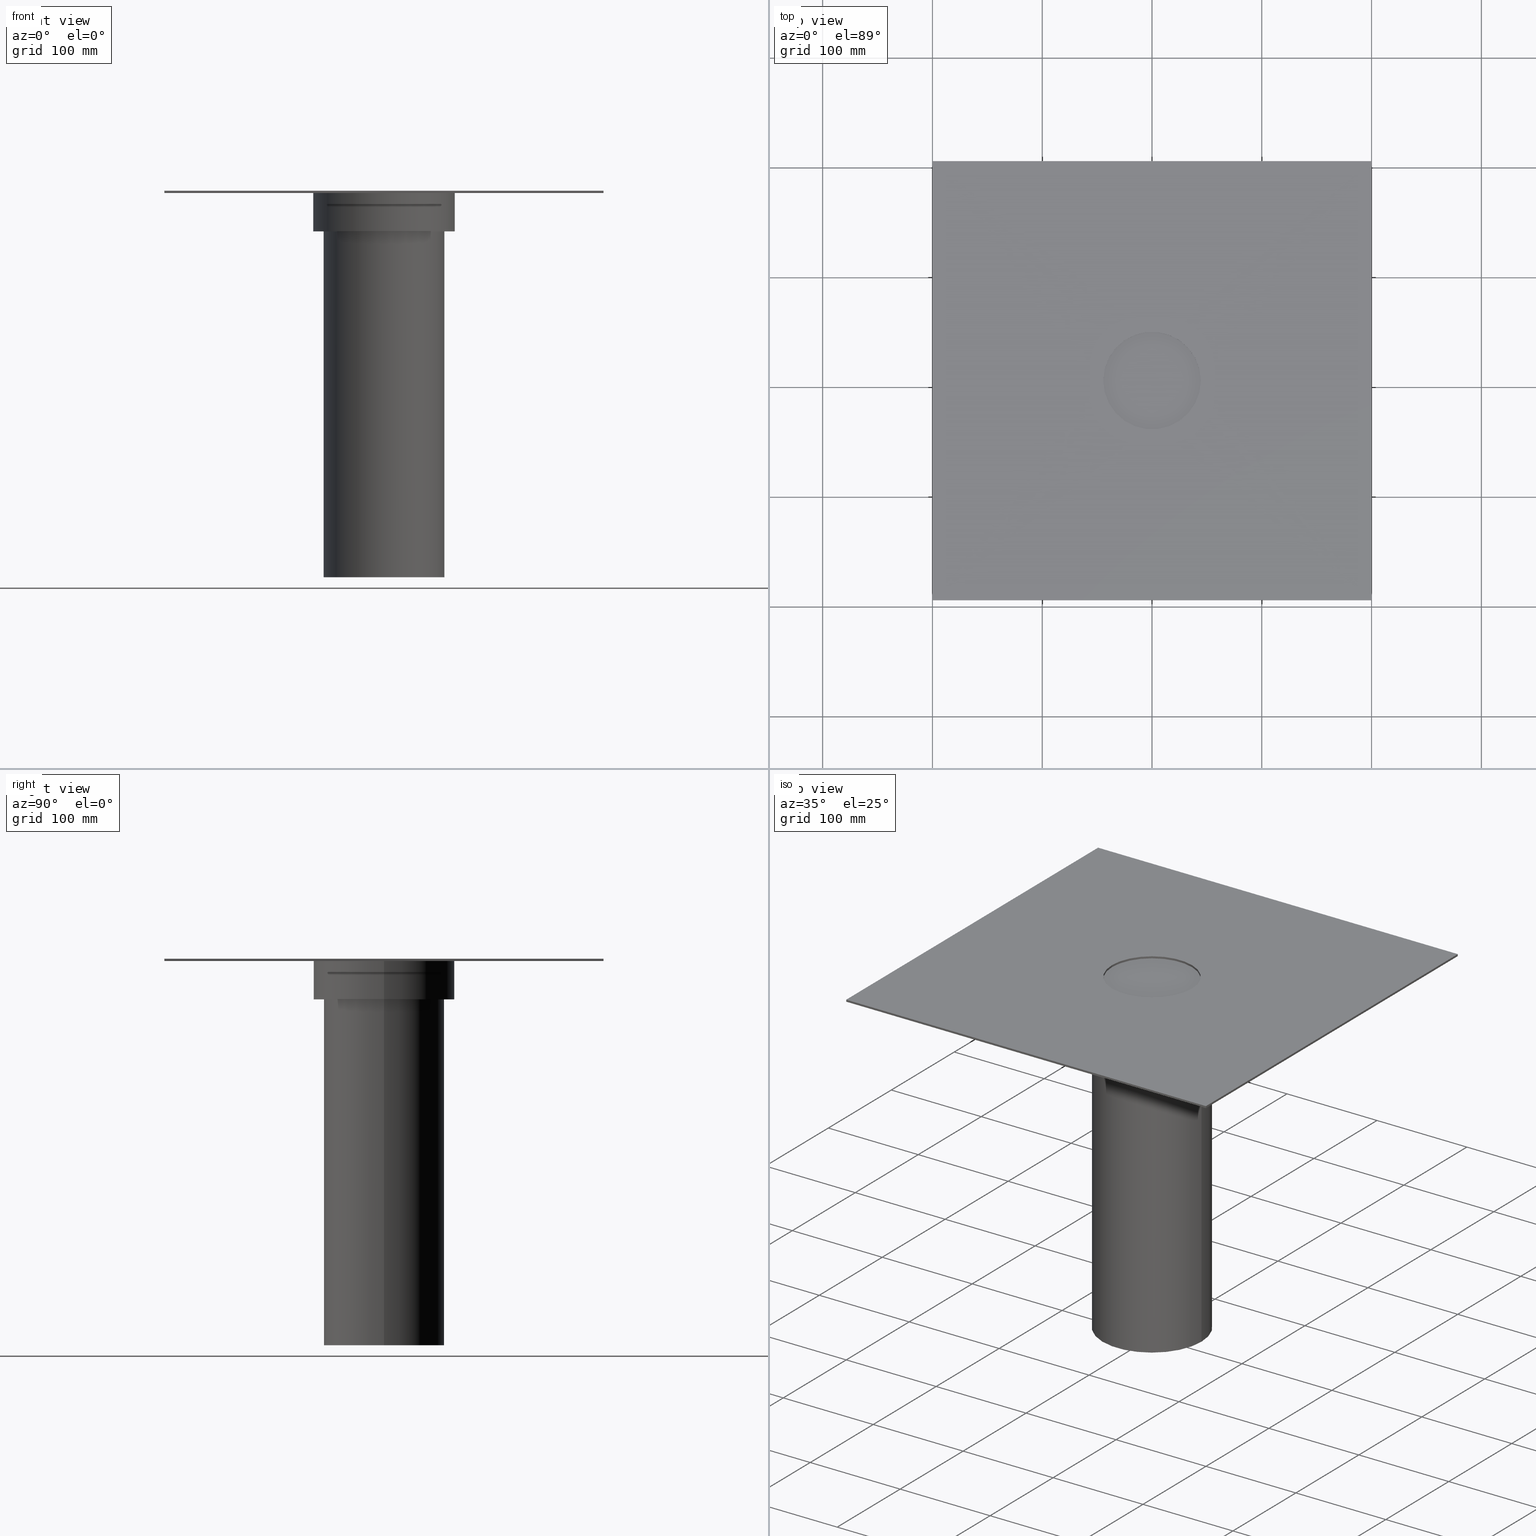
[diagram: canonical four-view strip — front | top / right | iso, engineering-drawing reading convention]
A machine part, canonical four-view strip (front | top / right | iso — engineering-drawing reading convention). The complete STEP part file that produces these views, byte-faithful:
ISO-10303-21;
HEADER;
/* Generated by software containing ST-Developer
 * from STEP Tools, Inc. (www.steptools.com) 
 */

FILE_DESCRIPTION(
/* description */ (''),
/* implementation_level */ '2;1');

FILE_NAME(
/* name */ 
'G:\\Workspace\\resitec\\Packs\\Kategorie\\Dachwassereinlauf\\RS586.10
0.110.stp',
/* time_stamp */ '2020-12-02T18:23:02+01:00',
/* author */ ('ndmes'),
/* organization */ (''),
/* preprocessor_version */ 'ST-DEVELOPER v18.1',
/* originating_system */ 'Autodesk Inventor 2021',
/* authorisation */ '');

FILE_SCHEMA (('AUTOMOTIVE_DESIGN { 1 0 10303 214 3 1 1 }'));
ENDSEC;

DATA;
#10=MECHANICAL_DESIGN_GEOMETRIC_PRESENTATION_REPRESENTATION('',(#13,#14,
#15),#441);
#11=SHAPE_REPRESENTATION_RELATIONSHIP('SRR','None',#448,#12);
#12=ADVANCED_BREP_SHAPE_REPRESENTATION('',(#16,#17,#18),#440);
#13=STYLED_ITEM('',(#457),#16);
#14=STYLED_ITEM('',(#457),#17);
#15=STYLED_ITEM('',(#457),#18);
#16=MANIFOLD_SOLID_BREP('Volumenk\X\F6rper1',#245);
#17=MANIFOLD_SOLID_BREP('Volumenk\X\F6rper2',#246);
#18=MANIFOLD_SOLID_BREP('Volumenk\X\F6rper3',#247);
#19=FACE_BOUND('',#54,.T.);
#20=FACE_BOUND('',#56,.T.);
#21=PLANE('',#273);
#22=PLANE('',#274);
#23=PLANE('',#275);
#24=PLANE('',#276);
#25=PLANE('',#277);
#26=PLANE('',#278);
#27=PLANE('',#285);
#28=PLANE('',#286);
#29=PLANE('',#293);
#30=PLANE('',#294);
#31=FACE_OUTER_BOUND('',#47,.T.);
#32=FACE_OUTER_BOUND('',#48,.T.);
#33=FACE_OUTER_BOUND('',#49,.T.);
#34=FACE_OUTER_BOUND('',#50,.T.);
#35=FACE_OUTER_BOUND('',#51,.T.);
#36=FACE_OUTER_BOUND('',#52,.T.);
#37=FACE_OUTER_BOUND('',#53,.T.);
#38=FACE_OUTER_BOUND('',#55,.T.);
#39=FACE_OUTER_BOUND('',#57,.T.);
#40=FACE_OUTER_BOUND('',#58,.T.);
#41=FACE_OUTER_BOUND('',#59,.T.);
#42=FACE_OUTER_BOUND('',#60,.T.);
#43=FACE_OUTER_BOUND('',#61,.T.);
#44=FACE_OUTER_BOUND('',#62,.T.);
#45=FACE_OUTER_BOUND('',#63,.T.);
#46=FACE_OUTER_BOUND('',#64,.T.);
#47=EDGE_LOOP('',(#163,#164,#165,#166));
#48=EDGE_LOOP('',(#167,#168,#169,#170));
#49=EDGE_LOOP('',(#171,#172,#173,#174));
#50=EDGE_LOOP('',(#175,#176,#177,#178));
#51=EDGE_LOOP('',(#179,#180,#181,#182));
#52=EDGE_LOOP('',(#183,#184,#185,#186));
#53=EDGE_LOOP('',(#187,#188,#189,#190));
#54=EDGE_LOOP('',(#191,#192));
#55=EDGE_LOOP('',(#193,#194,#195,#196));
#56=EDGE_LOOP('',(#197,#198));
#57=EDGE_LOOP('',(#199,#200,#201,#202));
#58=EDGE_LOOP('',(#203,#204,#205,#206));
#59=EDGE_LOOP('',(#207,#208));
#60=EDGE_LOOP('',(#209,#210));
#61=EDGE_LOOP('',(#211,#212,#213,#214));
#62=EDGE_LOOP('',(#215,#216,#217,#218));
#63=EDGE_LOOP('',(#219,#220));
#64=EDGE_LOOP('',(#221,#222));
#65=LINE('',#377,#83);
#66=LINE('',#380,#84);
#67=LINE('',#387,#85);
#68=LINE('',#389,#86);
#69=LINE('',#391,#87);
#70=LINE('',#392,#88);
#71=LINE('',#395,#89);
#72=LINE('',#397,#90);
#73=LINE('',#398,#91);
#74=LINE('',#401,#92);
#75=LINE('',#403,#93);
#76=LINE('',#404,#94);
#77=LINE('',#406,#95);
#78=LINE('',#407,#96);
#79=LINE('',#413,#97);
#80=LINE('',#417,#98);
#81=LINE('',#429,#99);
#82=LINE('',#432,#100);
#83=VECTOR('',#301,304.8);
#84=VECTOR('',#304,304.8);
#85=VECTOR('',#313,304.8);
#86=VECTOR('',#314,304.8);
#87=VECTOR('',#315,304.8);
#88=VECTOR('',#316,304.8);
#89=VECTOR('',#319,304.8);
#90=VECTOR('',#320,304.8);
#91=VECTOR('',#321,304.8);
#92=VECTOR('',#324,304.8);
#93=VECTOR('',#325,304.8);
#94=VECTOR('',#326,304.8);
#95=VECTOR('',#329,304.8);
#96=VECTOR('',#330,304.8);
#97=VECTOR('',#337,304.8);
#98=VECTOR('',#340,304.8);
#99=VECTOR('',#357,304.8);
#100=VECTOR('',#360,304.8);
#101=CIRCLE('',#268,44.4499999999999);
#102=CIRCLE('',#269,44.4499999999999);
#103=CIRCLE('',#271,44.4499999999999);
#104=CIRCLE('',#272,44.4499999999999);
#105=CIRCLE('',#280,55.);
#106=CIRCLE('',#281,55.);
#107=CIRCLE('',#283,55.);
#108=CIRCLE('',#284,55.);
#109=CIRCLE('',#288,64.5);
#110=CIRCLE('',#289,64.5);
#111=CIRCLE('',#291,64.5);
#112=CIRCLE('',#292,64.5);
#113=VERTEX_POINT('',#373);
#114=VERTEX_POINT('',#374);
#115=VERTEX_POINT('',#376);
#116=VERTEX_POINT('',#378);
#117=VERTEX_POINT('',#385);
#118=VERTEX_POINT('',#386);
#119=VERTEX_POINT('',#388);
#120=VERTEX_POINT('',#390);
#121=VERTEX_POINT('',#394);
#122=VERTEX_POINT('',#396);
#123=VERTEX_POINT('',#400);
#124=VERTEX_POINT('',#402);
#125=VERTEX_POINT('',#411);
#126=VERTEX_POINT('',#412);
#127=VERTEX_POINT('',#414);
#128=VERTEX_POINT('',#416);
#129=VERTEX_POINT('',#425);
#130=VERTEX_POINT('',#426);
#131=VERTEX_POINT('',#428);
#132=VERTEX_POINT('',#430);
#133=EDGE_CURVE('',#113,#114,#101,.T.);
#134=EDGE_CURVE('',#115,#113,#65,.T.);
#135=EDGE_CURVE('',#116,#115,#102,.T.);
#136=EDGE_CURVE('',#114,#116,#66,.T.);
#137=EDGE_CURVE('',#114,#113,#103,.T.);
#138=EDGE_CURVE('',#115,#116,#104,.T.);
#139=EDGE_CURVE('',#117,#118,#67,.T.);
#140=EDGE_CURVE('',#119,#117,#68,.T.);
#141=EDGE_CURVE('',#120,#119,#69,.T.);
#142=EDGE_CURVE('',#118,#120,#70,.T.);
#143=EDGE_CURVE('',#121,#117,#71,.T.);
#144=EDGE_CURVE('',#122,#121,#72,.T.);
#145=EDGE_CURVE('',#119,#122,#73,.T.);
#146=EDGE_CURVE('',#123,#121,#74,.T.);
#147=EDGE_CURVE('',#124,#123,#75,.T.);
#148=EDGE_CURVE('',#122,#124,#76,.T.);
#149=EDGE_CURVE('',#118,#123,#77,.T.);
#150=EDGE_CURVE('',#124,#120,#78,.T.);
#151=EDGE_CURVE('',#125,#126,#79,.T.);
#152=EDGE_CURVE('',#127,#125,#105,.F.);
#153=EDGE_CURVE('',#128,#127,#80,.T.);
#154=EDGE_CURVE('',#126,#128,#106,.F.);
#155=EDGE_CURVE('',#128,#126,#107,.F.);
#156=EDGE_CURVE('',#125,#127,#108,.F.);
#157=EDGE_CURVE('',#129,#130,#109,.T.);
#158=EDGE_CURVE('',#131,#129,#81,.T.);
#159=EDGE_CURVE('',#132,#131,#110,.T.);
#160=EDGE_CURVE('',#130,#132,#82,.T.);
#161=EDGE_CURVE('',#130,#129,#111,.T.);
#162=EDGE_CURVE('',#131,#132,#112,.T.);
#163=ORIENTED_EDGE('',*,*,#133,.F.);
#164=ORIENTED_EDGE('',*,*,#134,.F.);
#165=ORIENTED_EDGE('',*,*,#135,.F.);
#166=ORIENTED_EDGE('',*,*,#136,.F.);
#167=ORIENTED_EDGE('',*,*,#137,.F.);
#168=ORIENTED_EDGE('',*,*,#136,.T.);
#169=ORIENTED_EDGE('',*,*,#138,.F.);
#170=ORIENTED_EDGE('',*,*,#134,.T.);
#171=ORIENTED_EDGE('',*,*,#139,.F.);
#172=ORIENTED_EDGE('',*,*,#140,.F.);
#173=ORIENTED_EDGE('',*,*,#141,.F.);
#174=ORIENTED_EDGE('',*,*,#142,.F.);
#175=ORIENTED_EDGE('',*,*,#143,.F.);
#176=ORIENTED_EDGE('',*,*,#144,.F.);
#177=ORIENTED_EDGE('',*,*,#145,.F.);
#178=ORIENTED_EDGE('',*,*,#140,.T.);
#179=ORIENTED_EDGE('',*,*,#146,.F.);
#180=ORIENTED_EDGE('',*,*,#147,.F.);
#181=ORIENTED_EDGE('',*,*,#148,.F.);
#182=ORIENTED_EDGE('',*,*,#144,.T.);
#183=ORIENTED_EDGE('',*,*,#149,.F.);
#184=ORIENTED_EDGE('',*,*,#142,.T.);
#185=ORIENTED_EDGE('',*,*,#150,.F.);
#186=ORIENTED_EDGE('',*,*,#147,.T.);
#187=ORIENTED_EDGE('',*,*,#141,.T.);
#188=ORIENTED_EDGE('',*,*,#145,.T.);
#189=ORIENTED_EDGE('',*,*,#148,.T.);
#190=ORIENTED_EDGE('',*,*,#150,.T.);
#191=ORIENTED_EDGE('',*,*,#135,.T.);
#192=ORIENTED_EDGE('',*,*,#138,.T.);
#193=ORIENTED_EDGE('',*,*,#149,.T.);
#194=ORIENTED_EDGE('',*,*,#146,.T.);
#195=ORIENTED_EDGE('',*,*,#143,.T.);
#196=ORIENTED_EDGE('',*,*,#139,.T.);
#197=ORIENTED_EDGE('',*,*,#137,.T.);
#198=ORIENTED_EDGE('',*,*,#133,.T.);
#199=ORIENTED_EDGE('',*,*,#151,.F.);
#200=ORIENTED_EDGE('',*,*,#152,.F.);
#201=ORIENTED_EDGE('',*,*,#153,.F.);
#202=ORIENTED_EDGE('',*,*,#154,.F.);
#203=ORIENTED_EDGE('',*,*,#151,.T.);
#204=ORIENTED_EDGE('',*,*,#155,.F.);
#205=ORIENTED_EDGE('',*,*,#153,.T.);
#206=ORIENTED_EDGE('',*,*,#156,.F.);
#207=ORIENTED_EDGE('',*,*,#152,.T.);
#208=ORIENTED_EDGE('',*,*,#156,.T.);
#209=ORIENTED_EDGE('',*,*,#155,.T.);
#210=ORIENTED_EDGE('',*,*,#154,.T.);
#211=ORIENTED_EDGE('',*,*,#157,.F.);
#212=ORIENTED_EDGE('',*,*,#158,.F.);
#213=ORIENTED_EDGE('',*,*,#159,.F.);
#214=ORIENTED_EDGE('',*,*,#160,.F.);
#215=ORIENTED_EDGE('',*,*,#161,.F.);
#216=ORIENTED_EDGE('',*,*,#160,.T.);
#217=ORIENTED_EDGE('',*,*,#162,.F.);
#218=ORIENTED_EDGE('',*,*,#158,.T.);
#219=ORIENTED_EDGE('',*,*,#159,.T.);
#220=ORIENTED_EDGE('',*,*,#162,.T.);
#221=ORIENTED_EDGE('',*,*,#161,.T.);
#222=ORIENTED_EDGE('',*,*,#157,.T.);
#223=CYLINDRICAL_SURFACE('',#267,44.4499999999999);
#224=CYLINDRICAL_SURFACE('',#270,44.4499999999999);
#225=CYLINDRICAL_SURFACE('',#279,55.);
#226=CYLINDRICAL_SURFACE('',#282,55.);
#227=CYLINDRICAL_SURFACE('',#287,64.5);
#228=CYLINDRICAL_SURFACE('',#290,64.5);
#229=ADVANCED_FACE('',(#31),#223,.F.);
#230=ADVANCED_FACE('',(#32),#224,.F.);
#231=ADVANCED_FACE('',(#33),#21,.T.);
#232=ADVANCED_FACE('',(#34),#22,.T.);
#233=ADVANCED_FACE('',(#35),#23,.T.);
#234=ADVANCED_FACE('',(#36),#24,.T.);
#235=ADVANCED_FACE('',(#37,#19),#25,.T.);
#236=ADVANCED_FACE('',(#38,#20),#26,.T.);
#237=ADVANCED_FACE('',(#39),#225,.T.);
#238=ADVANCED_FACE('',(#40),#226,.T.);
#239=ADVANCED_FACE('',(#41),#27,.T.);
#240=ADVANCED_FACE('',(#42),#28,.T.);
#241=ADVANCED_FACE('',(#43),#227,.T.);
#242=ADVANCED_FACE('',(#44),#228,.T.);
#243=ADVANCED_FACE('',(#45),#29,.T.);
#244=ADVANCED_FACE('',(#46),#30,.T.);
#245=CLOSED_SHELL('',(#229,#230,#231,#232,#233,#234,#235,#236));
#246=CLOSED_SHELL('',(#237,#238,#239,#240));
#247=CLOSED_SHELL('',(#241,#242,#243,#244));
#248=DERIVED_UNIT_ELEMENT(#250,1.);
#249=DERIVED_UNIT_ELEMENT(#443,3.);
#250=(
MASS_UNIT()
NAMED_UNIT(*)
SI_UNIT($,.GRAM.)
);
#251=DERIVED_UNIT((#248,#249));
#252=MEASURE_REPRESENTATION_ITEM('density measure',
POSITIVE_RATIO_MEASURE(1.),#251);
#253=PROPERTY_DEFINITION_REPRESENTATION(#258,#255);
#254=PROPERTY_DEFINITION_REPRESENTATION(#259,#256);
#255=REPRESENTATION('material name',(#257),#440);
#256=REPRESENTATION('density',(#252),#440);
#257=DESCRIPTIVE_REPRESENTATION_ITEM('Generic','Generic');
#258=PROPERTY_DEFINITION('material property','material name',#450);
#259=PROPERTY_DEFINITION('material property','density of part',#450);
#260=DATE_TIME_ROLE('creation_date');
#261=APPLIED_DATE_AND_TIME_ASSIGNMENT(#262,#260,(#450));
#262=DATE_AND_TIME(#263,#264);
#263=CALENDAR_DATE(2020,22,11);
#264=LOCAL_TIME(0,0,0.,#265);
#265=COORDINATED_UNIVERSAL_TIME_OFFSET(0,0,.BEHIND.);
#266=AXIS2_PLACEMENT_3D('placement',#371,#295,#296);
#267=AXIS2_PLACEMENT_3D('',#372,#297,#298);
#268=AXIS2_PLACEMENT_3D('',#375,#299,#300);
#269=AXIS2_PLACEMENT_3D('',#379,#302,#303);
#270=AXIS2_PLACEMENT_3D('',#381,#305,#306);
#271=AXIS2_PLACEMENT_3D('',#382,#307,#308);
#272=AXIS2_PLACEMENT_3D('',#383,#309,#310);
#273=AXIS2_PLACEMENT_3D('',#384,#311,#312);
#274=AXIS2_PLACEMENT_3D('',#393,#317,#318);
#275=AXIS2_PLACEMENT_3D('',#399,#322,#323);
#276=AXIS2_PLACEMENT_3D('',#405,#327,#328);
#277=AXIS2_PLACEMENT_3D('',#408,#331,#332);
#278=AXIS2_PLACEMENT_3D('',#409,#333,#334);
#279=AXIS2_PLACEMENT_3D('',#410,#335,#336);
#280=AXIS2_PLACEMENT_3D('',#415,#338,#339);
#281=AXIS2_PLACEMENT_3D('',#418,#341,#342);
#282=AXIS2_PLACEMENT_3D('',#419,#343,#344);
#283=AXIS2_PLACEMENT_3D('',#420,#345,#346);
#284=AXIS2_PLACEMENT_3D('',#421,#347,#348);
#285=AXIS2_PLACEMENT_3D('',#422,#349,#350);
#286=AXIS2_PLACEMENT_3D('',#423,#351,#352);
#287=AXIS2_PLACEMENT_3D('',#424,#353,#354);
#288=AXIS2_PLACEMENT_3D('',#427,#355,#356);
#289=AXIS2_PLACEMENT_3D('',#431,#358,#359);
#290=AXIS2_PLACEMENT_3D('',#433,#361,#362);
#291=AXIS2_PLACEMENT_3D('',#434,#363,#364);
#292=AXIS2_PLACEMENT_3D('',#435,#365,#366);
#293=AXIS2_PLACEMENT_3D('',#436,#367,#368);
#294=AXIS2_PLACEMENT_3D('',#437,#369,#370);
#295=DIRECTION('axis',(0.,0.,1.));
#296=DIRECTION('refdir',(1.,0.,0.));
#297=DIRECTION('center_axis',(0.,0.,-1.));
#298=DIRECTION('ref_axis',(1.,1.61554457443259E-15,0.));
#299=DIRECTION('center_axis',(0.,0.,-1.));
#300=DIRECTION('ref_axis',(1.,1.61554457443259E-15,0.));
#301=DIRECTION('',(0.,0.,1.));
#302=DIRECTION('center_axis',(0.,0.,1.));
#303=DIRECTION('ref_axis',(1.,1.61554457443259E-15,0.));
#304=DIRECTION('',(0.,0.,-1.));
#305=DIRECTION('center_axis',(0.,0.,-1.));
#306=DIRECTION('ref_axis',(1.,1.61554457443259E-15,0.));
#307=DIRECTION('center_axis',(0.,0.,-1.));
#308=DIRECTION('ref_axis',(1.,1.61554457443259E-15,0.));
#309=DIRECTION('center_axis',(0.,0.,1.));
#310=DIRECTION('ref_axis',(1.,1.61554457443259E-15,0.));
#311=DIRECTION('center_axis',(1.,-8.45989944764366E-17,0.));
#312=DIRECTION('ref_axis',(0.,0.,-1.));
#313=DIRECTION('',(0.,1.,0.));
#314=DIRECTION('',(0.,0.,1.));
#315=DIRECTION('',(0.,-1.,0.));
#316=DIRECTION('',(0.,0.,-1.));
#317=DIRECTION('center_axis',(-8.45989944764371E-17,-1.,0.));
#318=DIRECTION('ref_axis',(0.,0.,-1.));
#319=DIRECTION('',(1.,-1.69197988952874E-16,0.));
#320=DIRECTION('',(0.,0.,1.));
#321=DIRECTION('',(-1.,1.69197988952874E-16,0.));
#322=DIRECTION('center_axis',(-1.,8.45989944764366E-17,0.));
#323=DIRECTION('ref_axis',(0.,0.,-1.));
#324=DIRECTION('',(-8.45989944764366E-17,-1.,0.));
#325=DIRECTION('',(0.,0.,1.));
#326=DIRECTION('',(8.45989944764366E-17,1.,0.));
#327=DIRECTION('center_axis',(8.45989944764371E-17,1.,0.));
#328=DIRECTION('ref_axis',(0.,0.,-1.));
#329=DIRECTION('',(-1.,8.45989944764371E-17,0.));
#330=DIRECTION('',(1.,-8.45989944764371E-17,0.));
#331=DIRECTION('center_axis',(0.,0.,-1.));
#332=DIRECTION('ref_axis',(1.,-8.45989944764371E-17,0.));
#333=DIRECTION('center_axis',(0.,0.,1.));
#334=DIRECTION('ref_axis',(-1.,8.45989944764371E-17,0.));
#335=DIRECTION('center_axis',(3.1465766449588E-15,0.,1.));
#336=DIRECTION('ref_axis',(-1.,1.61554457443259E-15,3.04518315325757E-15));
#337=DIRECTION('',(3.14668925836615E-15,0.,1.));
#338=DIRECTION('center_axis',(3.1465766449588E-15,0.,1.));
#339=DIRECTION('ref_axis',(-1.,1.61554457443259E-15,3.04518315325757E-15));
#340=DIRECTION('',(-3.14668925836615E-15,0.,-1.));
#341=DIRECTION('center_axis',(-3.1465766449588E-15,0.,-1.));
#342=DIRECTION('ref_axis',(-1.,1.61554457443259E-15,3.04518315325757E-15));
#343=DIRECTION('center_axis',(3.1465766449588E-15,0.,1.));
#344=DIRECTION('ref_axis',(-1.,1.61554457443259E-15,3.04518315325757E-15));
#345=DIRECTION('center_axis',(-3.1465766449588E-15,0.,-1.));
#346=DIRECTION('ref_axis',(-1.,1.61554457443259E-15,3.04518315325757E-15));
#347=DIRECTION('center_axis',(3.1465766449588E-15,0.,1.));
#348=DIRECTION('ref_axis',(-1.,1.61554457443259E-15,3.04518315325757E-15));
#349=DIRECTION('center_axis',(-3.1465766449588E-15,0.,-1.));
#350=DIRECTION('ref_axis',(0.,1.,0.));
#351=DIRECTION('center_axis',(3.1465766449588E-15,0.,1.));
#352=DIRECTION('ref_axis',(0.,-1.,0.));
#353=DIRECTION('center_axis',(3.25146821111197E-15,0.,1.));
#354=DIRECTION('ref_axis',(-1.,1.61554457443259E-15,3.14786956191393E-15));
#355=DIRECTION('center_axis',(3.25146821111197E-15,0.,1.));
#356=DIRECTION('ref_axis',(-1.,1.61554457443259E-15,3.14786956191393E-15));
#357=DIRECTION('',(3.14224836626761E-15,0.,1.));
#358=DIRECTION('center_axis',(-3.25146821111197E-15,0.,-1.));
#359=DIRECTION('ref_axis',(-1.,1.61554457443259E-15,3.14786956191393E-15));
#360=DIRECTION('',(-3.14224836626761E-15,0.,-1.));
#361=DIRECTION('center_axis',(3.25146821111197E-15,0.,1.));
#362=DIRECTION('ref_axis',(-1.,1.61554457443259E-15,3.14786956191393E-15));
#363=DIRECTION('center_axis',(3.25146821111197E-15,0.,1.));
#364=DIRECTION('ref_axis',(-1.,1.61554457443259E-15,3.14786956191393E-15));
#365=DIRECTION('center_axis',(-3.25146821111197E-15,0.,-1.));
#366=DIRECTION('ref_axis',(-1.,1.61554457443259E-15,3.14786956191393E-15));
#367=DIRECTION('center_axis',(-3.25146821111197E-15,0.,-1.));
#368=DIRECTION('ref_axis',(0.,1.,0.));
#369=DIRECTION('center_axis',(3.25146821111197E-15,0.,1.));
#370=DIRECTION('ref_axis',(0.,-1.,0.));
#371=CARTESIAN_POINT('',(0.,0.,0.));
#372=CARTESIAN_POINT('Origin',(0.,-7.29742912929166E-14,0.));
#373=CARTESIAN_POINT('',(44.4499999999999,2.36877184534023E-13,-217.999999999993));
#374=CARTESIAN_POINT('',(-44.4499999999999,-1.35358391162299E-13,-217.999999999993));
#375=CARTESIAN_POINT('Origin',(0.,-7.29742912929166E-14,-217.999999999993));
#376=CARTESIAN_POINT('',(44.4499999999999,0.,-220.));
#377=CARTESIAN_POINT('',(44.4499999999999,5.62437205664419E-13,-220.));
#378=CARTESIAN_POINT('',(-44.4499999999999,-1.35358391162299E-13,-220.));
#379=CARTESIAN_POINT('Origin',(0.,-7.29742912929166E-14,-220.));
#380=CARTESIAN_POINT('',(-44.4499999999999,-1.44785247626445E-13,-217.999999999993));
#381=CARTESIAN_POINT('Origin',(0.,-7.29742912929166E-14,0.));
#382=CARTESIAN_POINT('Origin',(0.,-7.29742912929166E-14,-217.999999999993));
#383=CARTESIAN_POINT('Origin',(0.,-7.29742912929166E-14,-220.));
#384=CARTESIAN_POINT('Origin',(200.,-200.000000000001,-217.999999999993));
#385=CARTESIAN_POINT('',(200.,-200.000000000001,-217.999999999993));
#386=CARTESIAN_POINT('',(200.,200.000000000001,-217.999999999993));
#387=CARTESIAN_POINT('',(200.,-200.000000000001,-217.999999999993));
#388=CARTESIAN_POINT('',(200.,-200.000000000001,-220.));
#389=CARTESIAN_POINT('',(200.,-200.000000000001,-220.));
#390=CARTESIAN_POINT('',(200.,200.000000000001,-220.));
#391=CARTESIAN_POINT('',(200.,200.000000000001,-220.));
#392=CARTESIAN_POINT('',(200.,200.000000000001,-217.999999999993));
#393=CARTESIAN_POINT('Origin',(-200.,-200.000000000001,-217.999999999993));
#394=CARTESIAN_POINT('',(-200.,-200.000000000001,-217.999999999993));
#395=CARTESIAN_POINT('',(-200.,-200.000000000001,-217.999999999993));
#396=CARTESIAN_POINT('',(-200.,-200.000000000001,-220.));
#397=CARTESIAN_POINT('',(-200.,-200.000000000001,-220.));
#398=CARTESIAN_POINT('',(200.,-200.000000000001,-220.));
#399=CARTESIAN_POINT('Origin',(-200.,200.000000000001,-217.999999999993));
#400=CARTESIAN_POINT('',(-200.,200.000000000001,-217.999999999993));
#401=CARTESIAN_POINT('',(-200.,200.000000000001,-217.999999999993));
#402=CARTESIAN_POINT('',(-200.,200.000000000001,-220.));
#403=CARTESIAN_POINT('',(-200.,200.000000000001,-220.));
#404=CARTESIAN_POINT('',(-200.,-200.000000000001,-220.));
#405=CARTESIAN_POINT('Origin',(200.,200.000000000001,-217.999999999993));
#406=CARTESIAN_POINT('',(200.,200.000000000001,-217.999999999993));
#407=CARTESIAN_POINT('',(-200.,200.000000000001,-220.));
#408=CARTESIAN_POINT('Origin',(-200.,200.000000000001,-220.));
#409=CARTESIAN_POINT('Origin',(-200.,200.000000000001,-217.999999999993));
#410=CARTESIAN_POINT('Origin',(-3.46009887408627E-12,-7.18109563335285E-14,
-569.999999999998));
#411=CARTESIAN_POINT('',(-55.0000000000034,1.70439952602638E-14,-569.999999999997));
#412=CARTESIAN_POINT('',(-55.0000000000023,3.23613988551926E-13,-219.999999999997));
#413=CARTESIAN_POINT('',(-55.0000000000034,3.72463801635433E-13,-569.999999999997));
#414=CARTESIAN_POINT('',(54.9999999999965,-1.5393035053201E-13,-569.999999999998));
#415=CARTESIAN_POINT('Origin',(-3.46009887408627E-12,-7.18109563335285E-14,
-569.999999999998));
#416=CARTESIAN_POINT('',(54.9999999999976,-1.67401465322631E-13,-219.999999999997));
#417=CARTESIAN_POINT('',(54.9999999999976,-1.36241001385567E-13,-219.999999999997));
#418=CARTESIAN_POINT('Origin',(-2.35879704835069E-12,-7.18109563335285E-14,
-219.999999999997));
#419=CARTESIAN_POINT('Origin',(-3.46009887408627E-12,-7.18109563335285E-14,
-569.999999999998));
#420=CARTESIAN_POINT('Origin',(-2.35879704835069E-12,-7.18109563335285E-14,
-219.999999999997));
#421=CARTESIAN_POINT('Origin',(-3.46009887408627E-12,-7.18109563335285E-14,
-569.999999999998));
#422=CARTESIAN_POINT('Origin',(-44.4500000000034,0.,-569.999999999997));
#423=CARTESIAN_POINT('Origin',(-44.4500000000023,0.,-219.999999999997));
#424=CARTESIAN_POINT('Origin',(-8.29070145869082E-13,-1.04202625050902E-13,
-255.));
#425=CARTESIAN_POINT('',(-64.5000000000007,3.59522992132949E-13,-220.));
#426=CARTESIAN_POINT('',(64.4999999999993,-2.08405250101804E-13,-220.));
#427=CARTESIAN_POINT('Origin',(-7.15268758480161E-13,-1.04202625050902E-13,
-220.));
#428=CARTESIAN_POINT('',(-64.5000000000008,0.,-255.));
#429=CARTESIAN_POINT('',(-64.5000000000008,4.16810500203607E-13,-255.));
#430=CARTESIAN_POINT('',(64.4999999999992,-1.79761496066475E-13,-255.000000000001));
#431=CARTESIAN_POINT('Origin',(-8.29070145869082E-13,-1.04202625050902E-13,
-255.));
#432=CARTESIAN_POINT('',(64.4999999999993,-1.79761496066475E-13,-220.));
#433=CARTESIAN_POINT('Origin',(-8.29070145869082E-13,-1.04202625050902E-13,
-255.));
#434=CARTESIAN_POINT('Origin',(-7.15268758480161E-13,-1.04202625050902E-13,
-220.));
#435=CARTESIAN_POINT('Origin',(-8.29070145869082E-13,-1.04202625050902E-13,
-255.));
#436=CARTESIAN_POINT('Origin',(-64.5000000000008,0.,-255.));
#437=CARTESIAN_POINT('Origin',(-64.5000000000007,0.,-220.));
#438=UNCERTAINTY_MEASURE_WITH_UNIT(LENGTH_MEASURE(0.01),#442,
'DISTANCE_ACCURACY_VALUE',
'Maximum model space distance between geometric entities at asserted c
onnectivities');
#439=UNCERTAINTY_MEASURE_WITH_UNIT(LENGTH_MEASURE(0.01),#442,
'DISTANCE_ACCURACY_VALUE',
'Maximum model space distance between geometric entities at asserted c
onnectivities');
#440=(
GEOMETRIC_REPRESENTATION_CONTEXT(3)
GLOBAL_UNCERTAINTY_ASSIGNED_CONTEXT((#438))
GLOBAL_UNIT_ASSIGNED_CONTEXT((#442,#444,#445))
REPRESENTATION_CONTEXT('','3D')
);
#441=(
GEOMETRIC_REPRESENTATION_CONTEXT(3)
GLOBAL_UNCERTAINTY_ASSIGNED_CONTEXT((#439))
GLOBAL_UNIT_ASSIGNED_CONTEXT((#442,#444,#445))
REPRESENTATION_CONTEXT('','3D')
);
#442=(
LENGTH_UNIT()
NAMED_UNIT(*)
SI_UNIT(.MILLI.,.METRE.)
);
#443=(
LENGTH_UNIT()
NAMED_UNIT(*)
SI_UNIT(.CENTI.,.METRE.)
);
#444=(
NAMED_UNIT(*)
PLANE_ANGLE_UNIT()
SI_UNIT($,.RADIAN.)
);
#445=(
NAMED_UNIT(*)
SI_UNIT($,.STERADIAN.)
SOLID_ANGLE_UNIT()
);
#446=SHAPE_DEFINITION_REPRESENTATION(#447,#448);
#447=PRODUCT_DEFINITION_SHAPE('',$,#450);
#448=SHAPE_REPRESENTATION('',(#266),#440);
#449=PRODUCT_DEFINITION_CONTEXT('part definition',#454,'design');
#450=PRODUCT_DEFINITION('RS586.sat','RS586.sat',#451,#449);
#451=PRODUCT_DEFINITION_FORMATION('',$,#456);
#452=PRODUCT_RELATED_PRODUCT_CATEGORY('RS586.sat','RS586.sat',(#456));
#453=APPLICATION_PROTOCOL_DEFINITION('international standard',
'automotive_design',2009,#454);
#454=APPLICATION_CONTEXT(
'Core Data for Automotive Mechanical Design Process');
#455=PRODUCT_CONTEXT('part definition',#454,'mechanical');
#456=PRODUCT('RS586.sat','RS586.sat',$,(#455));
#457=PRESENTATION_STYLE_ASSIGNMENT((#458));
#458=SURFACE_STYLE_USAGE(.BOTH.,#461);
#459=SURFACE_STYLE_RENDERING_WITH_PROPERTIES($,#465,(#460));
#460=SURFACE_STYLE_TRANSPARENT(0.);
#461=SURFACE_SIDE_STYLE('',(#462,#459));
#462=SURFACE_STYLE_FILL_AREA(#463);
#463=FILL_AREA_STYLE('',(#464));
#464=FILL_AREA_STYLE_COLOUR('',#465);
#465=COLOUR_RGB('',0.749019607843137,0.749019607843137,0.749019607843137);
ENDSEC;
END-ISO-10303-21;
